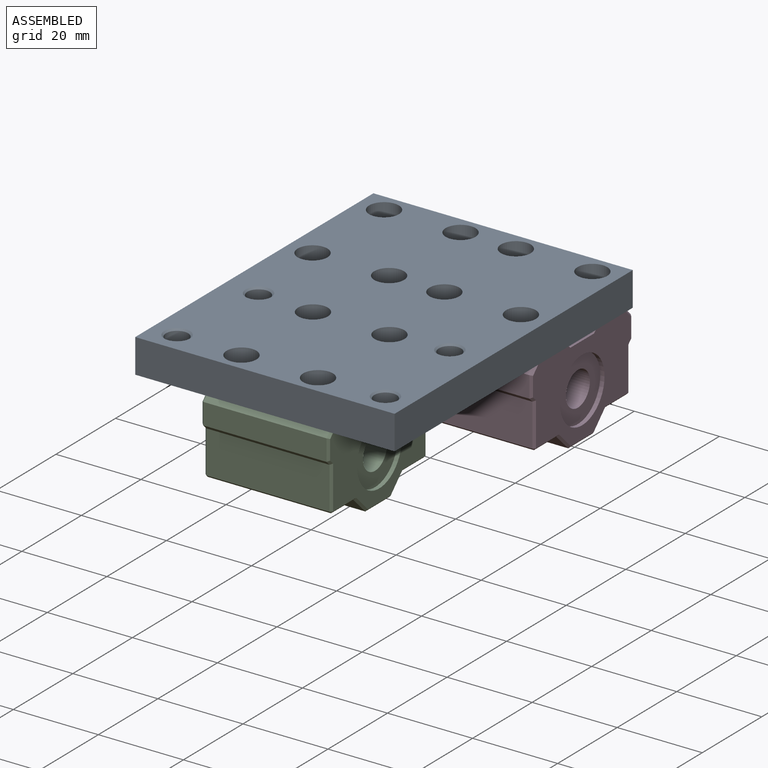
[diagram: assembled view]
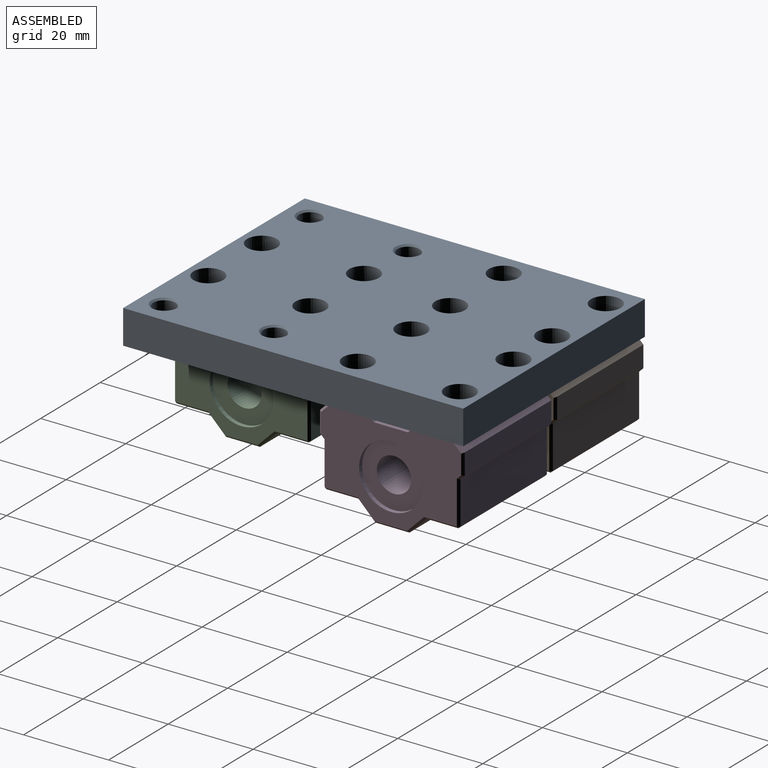
[diagram: assembled view, second angle]
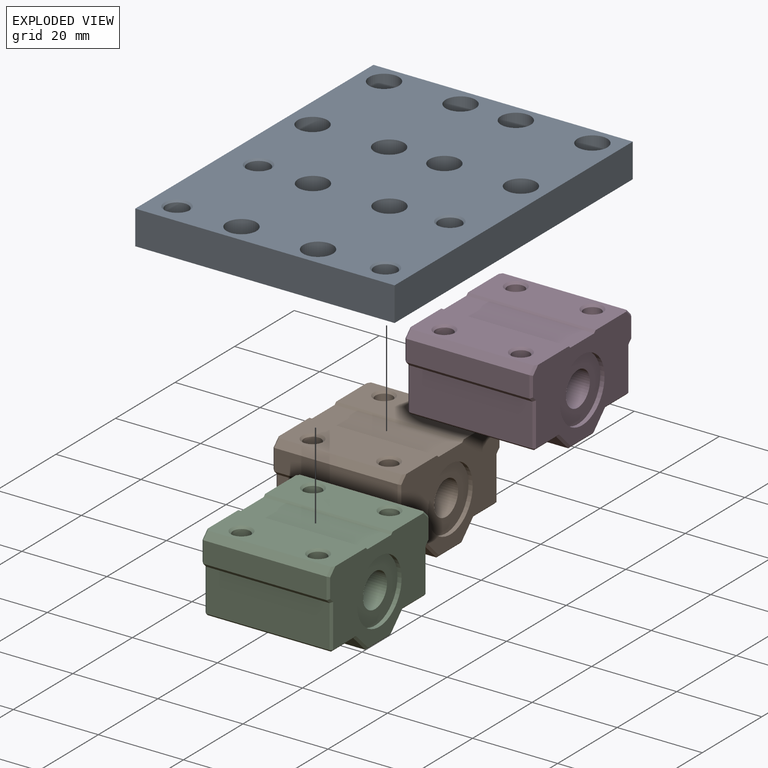
[diagram: exploded view]
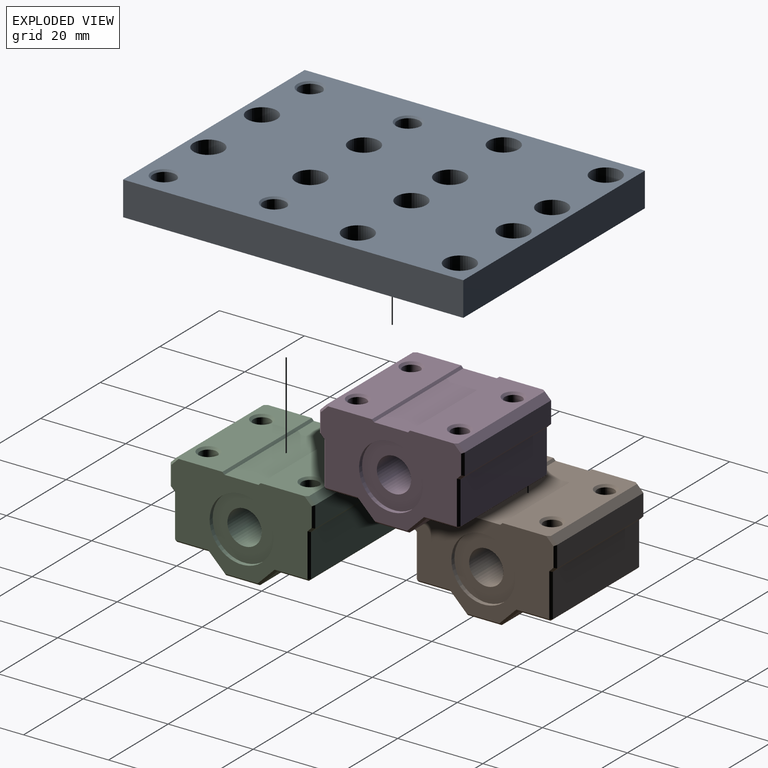
[diagram: exploded view, second angle]
ASSEMBLY  parts=4 mates=3
PART A: 50 faces, bbox 61x80x8 mm
  f0: cylinder r=2.25mm len=4.5mm, axis (0,0,1), area 45.9mm2, adj f16,f44
  f1: cylinder r=2.25mm len=4.5mm, axis (0,0,1), area 45.9mm2, adj f16,f42
  f2: cylinder r=2.25mm len=4.5mm, axis (0,0,1), area 45.9mm2, adj f16,f40
  f3: cylinder r=2.25mm len=4.5mm, axis (0,0,1), area 45.9mm2, adj f16,f38
  f4: cylinder r=2.25mm len=4.5mm, axis (0,0,1), area 45.9mm2, adj f16,f32
  f5: cylinder r=2.25mm len=4.5mm, axis (0,0,1), area 45.9mm2, adj f16,f30
  f6: cylinder r=2.25mm len=4.5mm, axis (0,0,1), area 45.9mm2, adj f16,f28
  f7: cylinder r=2.25mm len=4.5mm, axis (0,0,1), area 45.9mm2, adj f16,f26
  f8: cylinder r=2.25mm len=4.5mm, axis (0,0,1), area 45.9mm2, adj f16,f24
  f9: cylinder r=2.25mm len=4.5mm, axis (0,0,1), area 45.9mm2, adj f16,f22
  f10: cylinder r=2.25mm len=4.5mm, axis (0,0,1), area 45.9mm2, adj f16,f20
  f11: cylinder r=2.25mm len=4.5mm, axis (0,0,1), area 45.9mm2, adj f16,f18
  f12: plane 80x8mm, normal (1,0,0), area 640mm2, adj f13,f15,f16,f17
  f13: plane 61x8mm, normal (0,1,0), area 488mm2, adj f12,f14,f16,f17
  f14: plane 80x8mm, normal (-1,0,0), area 640mm2, adj f13,f15,f16,f17
  f15: plane 61x8mm, normal (0,-1,0), area 488mm2, adj f12,f14,f16,f17
  f16: plane 80x61mm, normal (0,0,-1), area 4602.6mm2, adj f0,f1,f2,f3,f4,f5,f6,f7
  f17: plane 80x61mm, normal (0,0,1), area 4303.2mm2, adj f12,f13,f14,f15,f19,f21,f23,f25
  f18: cone r=0mm half-angle=59deg, axis (0,0,1), area 26.3mm2, adj f11,f19
  f19: cylinder r=3.5mm len=7mm, axis (0,0,1), area 88mm2, adj f17,f18
  f20: cone r=0mm half-angle=59deg, axis (0,0,1), area 26.3mm2, adj f10,f21
  f21: cylinder r=3.5mm len=7mm, axis (0,0,1), area 88mm2, adj f17,f20
  f22: cone r=0mm half-angle=59deg, axis (0,0,1), area 26.3mm2, adj f9,f23
  f23: cylinder r=3.5mm len=7mm, axis (0,0,1), area 88mm2, adj f17,f22
  f24: cone r=0mm half-angle=59deg, axis (0,0,1), area 26.3mm2, adj f8,f25
  f25: cylinder r=3.5mm len=7mm, axis (0,0,1), area 88mm2, adj f17,f24
  f26: cone r=0mm half-angle=59deg, axis (0,0,1), area 26.3mm2, adj f7,f27
  f27: cylinder r=3.5mm len=7mm, axis (0,0,1), area 88mm2, adj f17,f26
  f28: cone r=0mm half-angle=59deg, axis (0,0,1), area 26.3mm2, adj f6,f29
  f29: cylinder r=3.5mm len=7mm, axis (0,0,1), area 88mm2, adj f17,f28
  f30: cone r=0mm half-angle=59deg, axis (0,0,1), area 26.3mm2, adj f5,f31
  f31: cylinder r=3.5mm len=7mm, axis (0,0,1), area 88mm2, adj f17,f30
  f32: cone r=0mm half-angle=59deg, axis (0,0,1), area 26.3mm2, adj f4,f33
  f33: cylinder r=3.5mm len=7mm, axis (0,0,1), area 88mm2, adj f17,f32
  f34: cylinder r=2.62mm len=7.6mm, axis (0,0,1), area 125.3mm2, adj f16,f36
  f35: cylinder r=2.62mm len=7.6mm, axis (0,0,1), area 125.3mm2, adj f16,f37
  f36: cone r=2.62mm half-angle=45deg, axis (0,0,1), area 10mm2, adj f17,f34
  f37: cone r=2.62mm half-angle=45deg, axis (0,0,1), area 10mm2, adj f17,f35
  f38: cone r=0mm half-angle=59deg, axis (0,0,1), area 26.3mm2, adj f3,f39
  f39: cylinder r=3.5mm len=7mm, axis (0,0,1), area 88mm2, adj f17,f38
  f40: cone r=0mm half-angle=59deg, axis (0,0,1), area 26.3mm2, adj f2,f41
  f41: cylinder r=3.5mm len=7mm, axis (0,0,1), area 88mm2, adj f17,f40
  f42: cone r=0mm half-angle=59deg, axis (0,0,1), area 26.3mm2, adj f1,f43
  f43: cylinder r=3.5mm len=7mm, axis (0,0,1), area 88mm2, adj f17,f42
  f44: cone r=0mm half-angle=59deg, axis (0,0,1), area 26.3mm2, adj f0,f45
  f45: cylinder r=3.5mm len=7mm, axis (0,0,1), area 88mm2, adj f17,f44
  f46: cylinder r=2.62mm len=7.6mm, axis (0,0,1), area 125.3mm2, adj f16,f48
  f47: cylinder r=2.62mm len=7.6mm, axis (0,0,1), area 125.3mm2, adj f16,f49
  f48: cone r=2.62mm half-angle=45deg, axis (0,0,1), area 10mm2, adj f17,f46
  f49: cone r=2.62mm half-angle=45deg, axis (0,0,1), area 10mm2, adj f17,f47
PART B: 69 faces, bbox 34x22x30 mm
  f0: cone r=2.25mm half-angle=45deg, axis (0,1,0), area 10mm2, adj f9,f44
  f1: cone r=2.25mm half-angle=45deg, axis (0,1,0), area 10mm2, adj f11,f44
  f2: cone r=2.25mm half-angle=45deg, axis (0,1,0), area 10mm2, adj f5,f67
  f3: cone r=2.25mm half-angle=45deg, axis (0,1,0), area 10mm2, adj f7,f67
  f4: cone r=2.25mm half-angle=45deg, axis (0,-1,0), area 10mm2, adj f5,f62
  f5: cylinder r=2mm len=17mm, axis (0,-1,0), area 213.6mm2, adj f2,f4
  f6: cone r=2.25mm half-angle=45deg, axis (0,-1,0), area 10mm2, adj f7,f62
  f7: cylinder r=2mm len=17mm, axis (0,-1,0), area 213.6mm2, adj f3,f6
  f8: cone r=2.25mm half-angle=45deg, axis (0,-1,0), area 10mm2, adj f9,f58
  f9: cylinder r=2mm len=17mm, axis (0,-1,0), area 213.6mm2, adj f0,f8
  f10: cone r=2.25mm half-angle=45deg, axis (0,-1,0), area 10mm2, adj f11,f58
  f11: cylinder r=2mm len=17mm, axis (0,-1,0), area 213.6mm2, adj f1,f10
  f12: plane 0.5x0.5mm, normal (0.58,0.58,-0.58), area 0.2mm2, adj f14,f36,f38
  f13: plane 0.5x0.5mm, normal (0.58,0.58,0.58), area 0.2mm2, adj f14,f33,f35
  f14: plane 29x0.5mm, normal (0.71,0.71,0), area 20.5mm2, adj f12,f13,f44,f45
  f15: plane 2.21x1.71mm, normal (-0.5,-0.5,-0.71), area 1.6mm2, adj f16,f62,f63,f68
  f16: plane 5x0.5mm, normal (-0.71,0,-0.71), area 3.4mm2, adj f15,f17,f64,f68
  f17: plane 1.5x1.21mm, normal (-0.5,0.5,-0.71), area 1mm2, adj f16,f20,f65,f68
  f18: plane 0.5x0.5mm, normal (-0.58,0.58,-0.58), area 0.2mm2, adj f19,f20,f22
  f19: plane 7.71x0.5mm, normal (0,0.71,-0.71), area 5.4mm2, adj f18,f30,f67,f68
  f20: plane 10.21x0.5mm, normal (-0.71,0,-0.71), area 7.1mm2, adj f17,f18,f66,f68
  f21: plane 0.5x0.5mm, normal (-0.58,0.58,0.58), area 0.2mm2, adj f22,f26,f27
  f22: plane 29x0.5mm, normal (-0.71,0.71,0), area 20.5mm2, adj f18,f21,f66,f67
  f23: plane 2.21x1.71mm, normal (-0.5,-0.5,0.71), area 1.6mm2, adj f24,f49,f62,f63
  f24: plane 5x0.5mm, normal (-0.71,0,0.71), area 3.4mm2, adj f23,f25,f49,f64
  f25: plane 1.5x1.21mm, normal (-0.5,0.5,0.71), area 1mm2, adj f24,f26,f49,f65
  f26: plane 10.21x0.5mm, normal (-0.71,0,0.71), area 7.1mm2, adj f21,f25,f49,f66
  f27: plane 7.71x0.5mm, normal (0,0.71,0.71), area 5.4mm2, adj f21,f28,f49,f67
  f28: plane 4.5x4.21mm, normal (-0.5,0.5,0.71), area 4mm2, adj f27,f29,f49,f55
  f29: plane 8x0.5mm, normal (0,0.71,0.71), area 5.5mm2, adj f28,f31,f49,f56
  f30: plane 4.5x4.21mm, normal (-0.5,0.5,-0.71), area 4mm2, adj f19,f32,f55,f68
  f31: plane 4.5x4.21mm, normal (0.5,0.5,0.71), area 4mm2, adj f29,f33,f49,f57
  f32: plane 8x0.5mm, normal (0,0.71,-0.71), area 5.5mm2, adj f30,f34,f56,f68
  f33: plane 7.71x0.5mm, normal (0,0.71,0.71), area 5.4mm2, adj f13,f31,f44,f49
  f34: plane 4.5x4.21mm, normal (0.5,0.5,-0.71), area 4mm2, adj f32,f36,f57,f68
  f35: plane 10.21x0.5mm, normal (0.71,0,0.71), area 7.1mm2, adj f13,f37,f45,f49
  f36: plane 7.71x0.5mm, normal (0,0.71,-0.71), area 5.4mm2, adj f12,f34,f44,f68
  f37: plane 1.5x1.21mm, normal (0.5,0.5,0.71), area 1mm2, adj f35,f39,f46,f49
  f38: plane 10.21x0.5mm, normal (0.71,0,-0.71), area 7.1mm2, adj f12,f40,f45,f68
  f39: plane 5x0.5mm, normal (0.71,0,0.71), area 3.4mm2, adj f37,f41,f47,f49
  f40: plane 1.5x1.21mm, normal (0.5,0.5,-0.71), area 1mm2, adj f38,f42,f46,f68
  f41: plane 2.21x1.71mm, normal (0.5,-0.5,0.71), area 1.6mm2, adj f39,f48,f49,f58
  f42: plane 5x0.5mm, normal (0.71,0,-0.71), area 3.4mm2, adj f40,f43,f47,f68
  f43: plane 2.21x1.71mm, normal (0.5,-0.5,-0.71), area 1.6mm2, adj f42,f48,f58,f68
  f44: plane 29x7.5mm, normal (0,1,0), area 178.2mm2, adj f0,f1,f14,f33,f36,f57
  f45: plane 29x10mm, normal (1,0,0), area 290mm2, adj f14,f35,f38,f46
  f46: plane 29x1mm, normal (0.71,0.71,0), area 41mm2, adj f37,f40,f45,f47
  f47: plane 29x5mm, normal (1,0,0), area 145mm2, adj f39,f42,f46,f48
  f48: plane 29x1.5mm, normal (0.71,-0.71,0), area 61.5mm2, adj f41,f43,f47,f58
  f49: plane 33x21.5mm, normal (0,0,1), area 418.6mm2, adj f23,f24,f25,f26,f27,f28,f29,f31
  f50: cylinder r=4.03mm len=28mm, axis (0,0,-1), area 708.1mm2, adj f52,f54
  f51: cylinder r=7.5mm len=15mm, axis (0,0,-1), area 47.1mm2, adj f52,f68
  f52: plane 15x15mm, normal (0,0,-1), area 125.8mm2, adj f50,f51
  f53: cylinder r=7.5mm len=15mm, axis (0,0,1), area 47.1mm2, adj f49,f54
  f54: plane 15x15mm, normal (0,0,1), area 125.8mm2, adj f50,f53
  f55: plane 29x4mm, normal (-0.71,0.71,0), area 164mm2, adj f28,f30,f56,f67
  f56: plane 29x8mm, normal (0,1,0), area 232mm2, adj f29,f32,f55,f57
  f57: plane 29x4mm, normal (0.71,0.71,0), area 164mm2, adj f31,f34,f44,f56
  f58: plane 30x11mm, normal (0,-1,0), area 290.4mm2, adj f8,f10,f41,f43,f48,f49,f59,f68
  f59: plane 30x0.5mm, normal (-0.71,-0.71,0), area 21.2mm2, adj f49,f58,f60,f68
  f60: plane 30x8mm, normal (0,-1,0), area 240mm2, adj f49,f59,f61,f68
  f61: plane 30x0.5mm, normal (0.71,-0.71,0), area 21.2mm2, adj f49,f60,f62,f68
  f62: plane 30x11mm, normal (0,-1,0), area 290.4mm2, adj f4,f6,f15,f23,f49,f61,f63,f68
  f63: plane 29x1.5mm, normal (-0.71,-0.71,0), area 61.5mm2, adj f15,f23,f62,f64
  f64: plane 29x5mm, normal (-1,0,0), area 145mm2, adj f16,f24,f63,f65
  f65: plane 29x1mm, normal (-0.71,0.71,0), area 41mm2, adj f17,f25,f64,f66
  f66: plane 29x10mm, normal (-1,0,0), area 290mm2, adj f20,f22,f26,f65
  f67: plane 29x7.5mm, normal (0,1,0), area 178.2mm2, adj f2,f3,f19,f22,f27,f55
  f68: plane 33x21.5mm, normal (0,0,-1), area 418.6mm2, adj f15,f16,f17,f19,f20,f30,f32,f34
PART C: same geometry as B
PART D: same geometry as B
PLACE A t=(-30.05,-18.27,2.61)mm
PLACE B rot(axis=(-0.58,0.58,-0.58),120deg) t=(-60.55,4.82,-14.07)mm
PLACE C rot(axis=(-0.58,0.58,-0.58),120deg) t=(-45.05,-41.18,-14.07)mm
PLACE D rot(axis=(-0.58,0.58,-0.58),120deg) t=(-29.55,4.82,-14.07)mm
MATE fastened B.f6 <-> A.f4  axis (0,0,1) through (-36.55,16.73,-5.39)mm
MATE fastened C.f4 <-> A.f8  axis (0,0,1) through (-39.05,-29.27,-5.39)mm
MATE fastened D.f4 <-> A.f0  axis (0,0,1) through (-23.55,16.73,-5.39)mm
